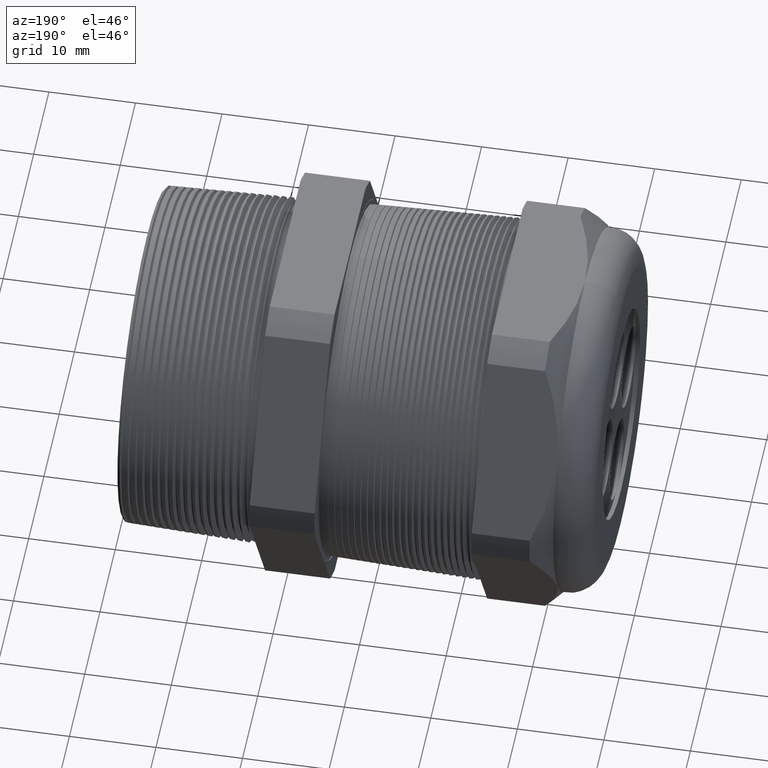
[diagram: clean part render]
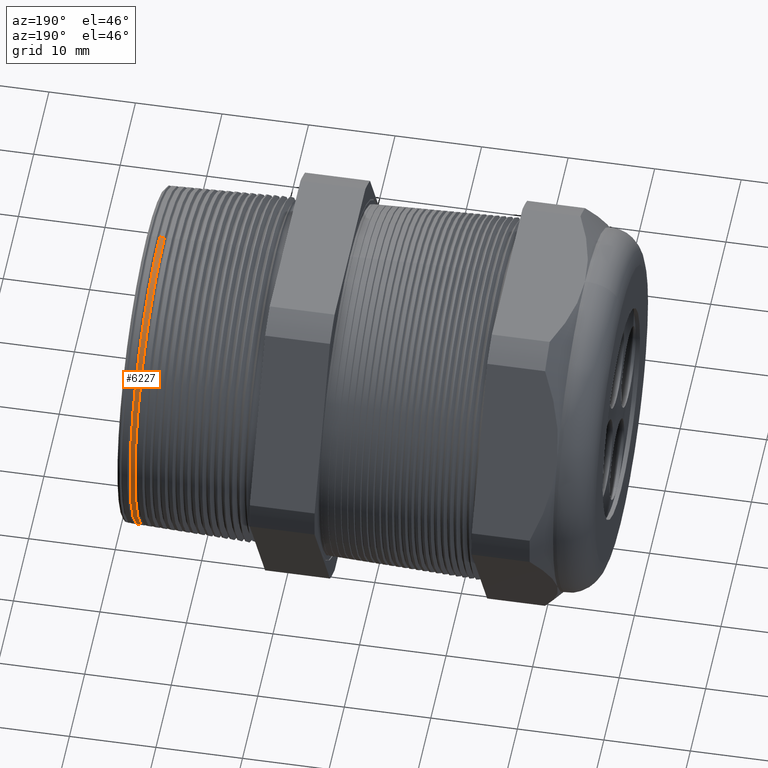
[diagram: same view with one face highlighted and labeled with its STEP entity id]
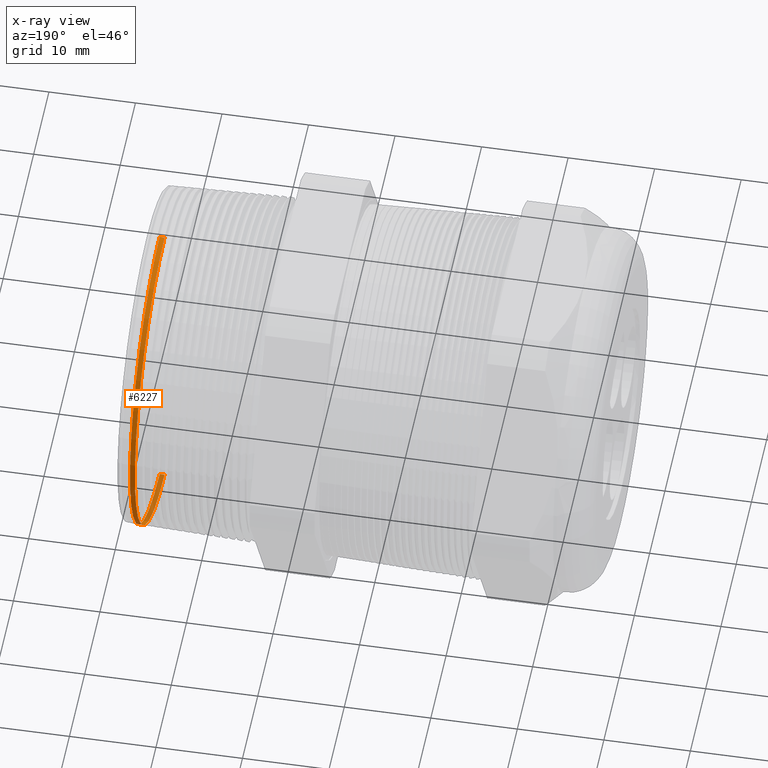
[diagram: x-ray of the same camera — body ghosted, the highlighted face saturated]
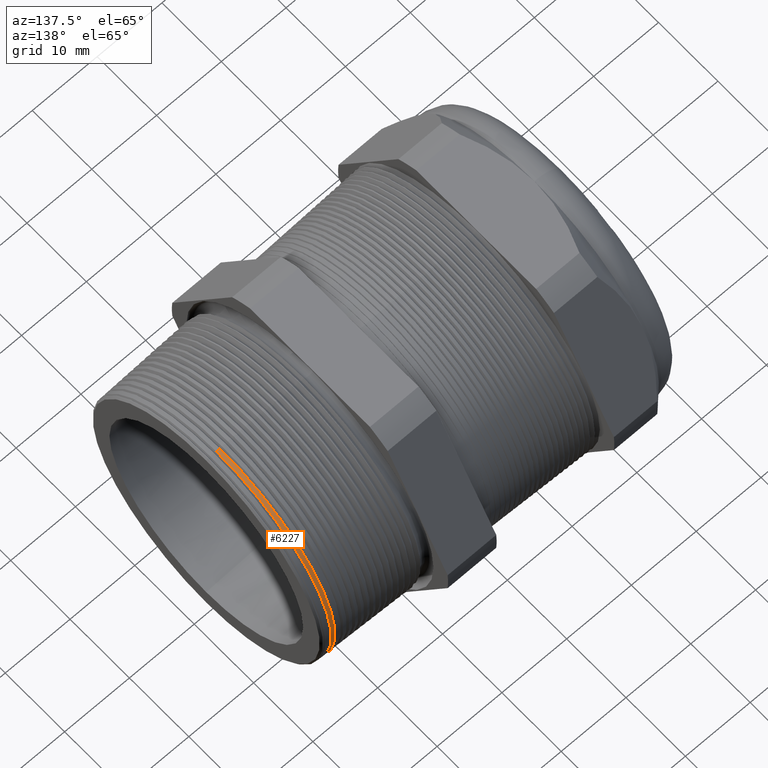
[diagram: same view with one face highlighted and labeled with its STEP entity id]
A machine part, auxiliary view. The second image highlights one B-rep face of the part: STEP entity #6227.
The next image is the same camera in x-ray: the body ghosted, the highlighted face saturated — about 14% of this face is hidden behind the body in this view.
A second angle (auxiliary view) of the same face is appended — the face is thin or edge-on in the first view.
In plain terms, the highlighted conical surface has half-angle 2 deg.
Its self-contained STEP definition (entity closure, byte-faithful):
#221 = CARTESIAN_POINT ( 'NONE',  ( 0.2384085732638643000, 0.0000000000000000000, 0.7655681747715439300 ) ) ;
#232 = DIRECTION ( 'NONE',  ( 0.0000000000000000000, 0.0000000000000000000, -1.000000000000000000 ) ) ;
#233 = DIRECTION ( 'NONE',  ( -1.000000000000000000, 0.0000000000000000000, 0.0000000000000000000 ) ) ;
#234 = CARTESIAN_POINT ( 'NONE',  ( 0.2384085732638643000, 0.0000000000000000000, 0.0000000000000000000 ) ) ;
#235 = AXIS2_PLACEMENT_3D ( 'NONE', #234, #233, #232 ) ;
#236 = CIRCLE ( 'NONE', #235, 0.7655681747715439300 ) ;
#2315 = DIRECTION ( 'NONE',  ( -0.9993908270190959800, 4.273955692856243500E-018, -0.03489949670249363500 ) ) ;
#2316 = VECTOR ( 'NONE', #2315, 39.37007874015748100 ) ;
#2317 = CARTESIAN_POINT ( 'NONE',  ( 0.3200000000000000100, 9.340613077436227500E-017, -0.7627189393659891100 ) ) ;
#2318 = DIRECTION ( 'NONE',  ( 0.0000000000000000000, 0.0000000000000000000, 1.000000000000000000 ) ) ;
#2319 = DIRECTION ( 'NONE',  ( -1.000000000000000000, 0.0000000000000000000, 0.0000000000000000000 ) ) ;
#2320 = CARTESIAN_POINT ( 'NONE',  ( 0.3200000000000000100, 0.0000000000000000000, 0.0000000000000000000 ) ) ;
#2321 = AXIS2_PLACEMENT_3D ( 'NONE', #2320, #2319, #2318 ) ;
#2322 = CONICAL_SURFACE ( 'NONE', #2321, 0.7627189393659891100, 0.03490658503987925000 ) ;
#2323 = LINE ( 'NONE', #2317, #2316 ) ;
#2324 = FACE_OUTER_BOUND ( 'NONE', #6228, .T. ) ;
#2372 = DIRECTION ( 'NONE',  ( -0.9993908270190959800, 0.0000000000000000000, 0.03489949670249363500 ) ) ;
#2373 = VECTOR ( 'NONE', #2372, 39.37007874015748100 ) ;
#2374 = CARTESIAN_POINT ( 'NONE',  ( 0.3200000000000000100, 0.0000000000000000000, 0.7627189393659891100 ) ) ;
#2375 = LINE ( 'NONE', #2374, #2373 ) ;
#4754 = CARTESIAN_POINT ( 'NONE',  ( 0.2384085732638643000, 9.375506147630528200E-017, -0.7655681747715439300 ) ) ;
#4782 = DIRECTION ( 'NONE',  ( 0.0000000000000000000, 0.0000000000000000000, 1.000000000000000000 ) ) ;
#4783 = DIRECTION ( 'NONE',  ( 1.000000000000000000, 0.0000000000000000000, 0.0000000000000000000 ) ) ;
#4784 = CARTESIAN_POINT ( 'NONE',  ( 0.2605946313630379500, 0.0000000000000000000, 0.0000000000000000000 ) ) ;
#4785 = AXIS2_PLACEMENT_3D ( 'NONE', #4784, #4783, #4782 ) ;
#4786 = CIRCLE ( 'NONE', #4785, 0.7647934205507324100 ) ;
#4807 = CARTESIAN_POINT ( 'NONE',  ( 0.2605946313630379500, 9.370762146247314700E-017, -0.7647934205507324100 ) ) ;
#4812 = CARTESIAN_POINT ( 'NONE',  ( 0.2605946313630379500, 0.0000000000000000000, 0.7647934205507324100 ) ) ;
#5106 = EDGE_CURVE ( 'NONE', #5114, #7704, #236, .T. ) ;
#5114 = VERTEX_POINT ( 'NONE', #221 ) ;
#6227 = ADVANCED_FACE ( 'NONE', ( #2324 ), #2322, .T. ) ;
#6228 = EDGE_LOOP ( 'NONE', ( #6229, #6230, #6232, #6234 ) ) ;
#6229 = ORIENTED_EDGE ( 'NONE', *, *, #7718, .F. ) ;
#6230 = ORIENTED_EDGE ( 'NONE', *, *, #6231, .T. ) ;
#6231 = EDGE_CURVE ( 'NONE', #7708, #7704, #2323, .T. ) ;
#6232 = ORIENTED_EDGE ( 'NONE', *, *, #5106, .F. ) ;
#6234 = ORIENTED_EDGE ( 'NONE', *, *, #6235, .F. ) ;
#6235 = EDGE_CURVE ( 'NONE', #7706, #5114, #2375, .T. ) ;
#7704 = VERTEX_POINT ( 'NONE', #4754 ) ;
#7706 = VERTEX_POINT ( 'NONE', #4812 ) ;
#7708 = VERTEX_POINT ( 'NONE', #4807 ) ;
#7718 = EDGE_CURVE ( 'NONE', #7708, #7706, #4786, .T. ) ;